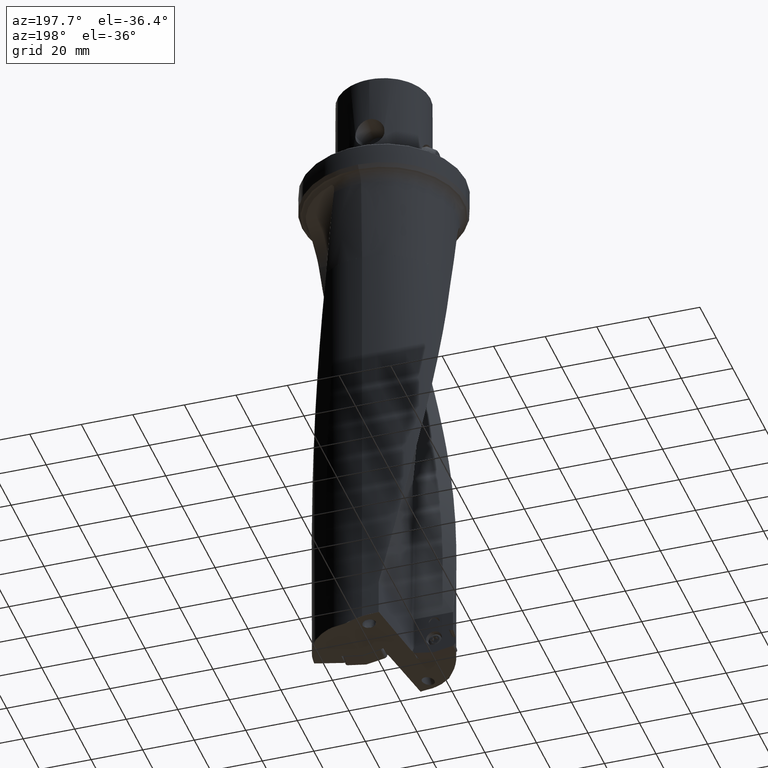
[diagram: clean part render]
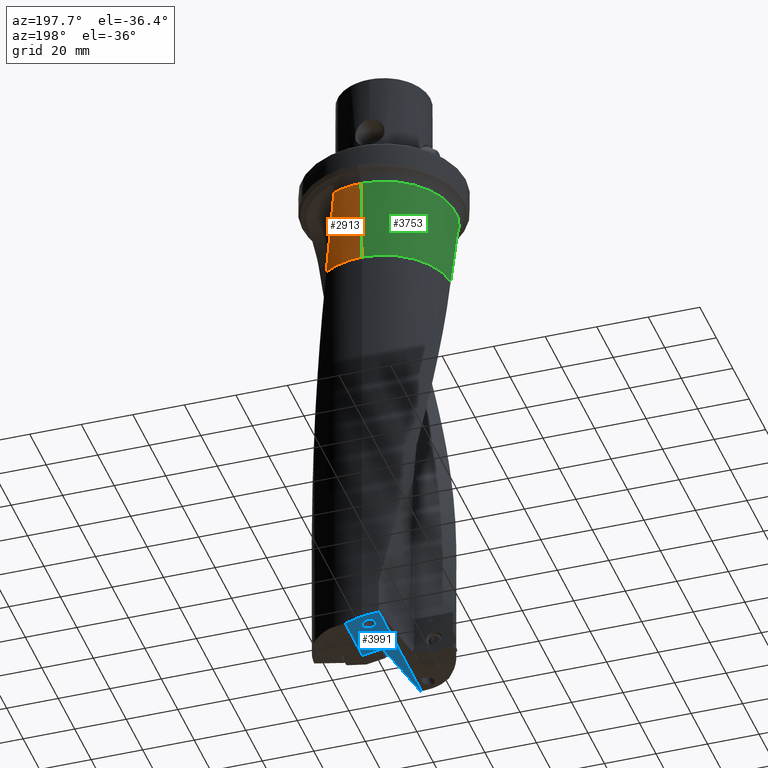
[diagram: same view with three faces highlighted in distinct colors, each labeled with its STEP entity id]
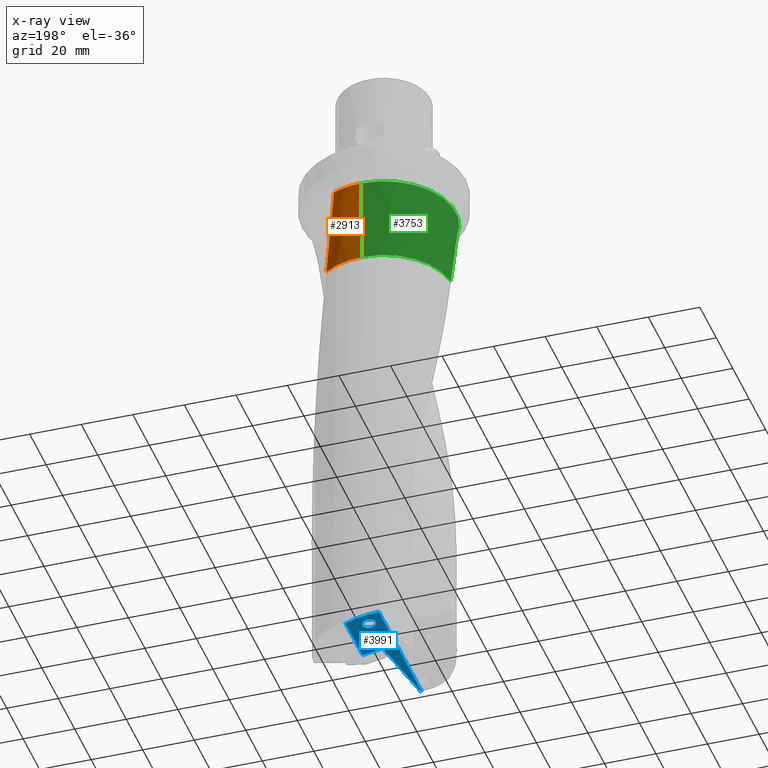
[diagram: x-ray of the same camera — body ghosted, the three highlighted faces saturated]
A machine part, auxiliary view with three faces highlighted in distinct colors.
The next image is the same camera in x-ray (body ghosted, the three faces saturated) — at least one of them is partly hidden behind the body in this view.
Their STEP definitions:

[orange] entity #2913 — the highlighted conical surface has half-angle 2 deg.
#2107=EDGE_CURVE('NONE',#3007,#2721,#5804,.T.);
#2721=VERTEX_POINT('NONE',#6487);
#2913=ADVANCED_FACE('NONE',(#6697),#6698,.T.);
#3007=VERTEX_POINT('NONE',#6804);
#4087=EDGE_CURVE('NONE',#2721,#4703,#8013,.T.);
#4429=EDGE_CURVE('NONE',#4703,#5197,#8394,.F.);
#4703=VERTEX_POINT('NONE',#8697);
#5197=VERTEX_POINT('NONE',#9230);
#5419=EDGE_CURVE('NONE',#5197,#3007,#9474,.T.);
#5804=CIRCLE('',#11980,27.8919292863653);
#6487=CARTESIAN_POINT('',(11.2729304261871,25.5123648241778,-14.9414705584278));
#6697=FACE_OUTER_BOUND('',#19399,.T.);
#6698=CONICAL_SURFACE('',#19400,26.7375,0.0349065850398865);
#6804=CARTESIAN_POINT('',(0.0,27.8919292863653,-14.9414705584278));
#8013=B_SPLINE_CURVE_WITH_KNOTS('',3,(#41947,#41948,#41949,#41950,#41951,#41952,#41953,#41954,#41955,#41956),.UNSPECIFIED.,.F.,.F.,(4,3,3,4),(0.0,0.360174094340688,0.743214505960517,1.0),.UNSPECIFIED.);
#8394=CIRCLE('',#49047,26.7375609172981);
#8697=CARTESIAN_POINT('',(15.4328762786714,21.8339985704279,-47.9982555568222));
#9230=CARTESIAN_POINT('',(0.0,26.7375609172981,-47.9982555568222));
#9474=LINE('',#75172,#75173);
#11980=AXIS2_PLACEMENT_3D('',#75724,#75725,#75726);
#19399=EDGE_LOOP('',(#76752,#76753,#76754,#76755));
#19400=AXIS2_PLACEMENT_3D('',#76756,#76757,#76758);
#41947=CARTESIAN_POINT('',(11.2729304261871,25.5123648241778,-14.9414705584278));
#41948=CARTESIAN_POINT('',(11.8320675730131,25.1139070300152,-18.9070313249317));
#41949=CARTESIAN_POINT('',(12.3703401733632,24.6980316066396,-22.8737816850695));
#41950=CARTESIAN_POINT('',(12.8871114083014,24.2667064184802,-26.8416501023492));
#41951=CARTESIAN_POINT('',(13.4366908190759,23.807997754502,-31.0614259709893));
#41952=CARTESIAN_POINT('',(13.9620260752628,23.3317486143363,-35.2824487118406));
#41953=CARTESIAN_POINT('',(14.4617129296698,22.840853550321,-39.5048088966081));
#41954=CARTESIAN_POINT('',(14.7966967378569,22.5117636482878,-42.335426275785));
#41955=CARTESIAN_POINT('',(15.1206433869256,22.1757870598416,-45.1665445609205));
#41956=CARTESIAN_POINT('',(15.4328762786714,21.8339985704279,-47.9982555568222));
#49047=AXIS2_PLACEMENT_3D('',#78813,#78814,#78815);
#75172=CARTESIAN_POINT('',(0.0,26.7375,-48.0));
#75173=VECTOR('',#79951,1000.0);
#75724=CARTESIAN_POINT('',(0.0,0.0,-14.9414705584278));
#75725=DIRECTION('',(0.0,0.0,-1.0));
#75726=DIRECTION('',(0.0,1.0,0.0));
#76752=ORIENTED_EDGE('',*,*,#4429,.T.);
#76753=ORIENTED_EDGE('',*,*,#5419,.T.);
#76754=ORIENTED_EDGE('',*,*,#2107,.T.);
#76755=ORIENTED_EDGE('',*,*,#4087,.T.);
#76756=CARTESIAN_POINT('',(0.0,0.0,-48.0));
#76757=DIRECTION('',(-0.0,-0.0,1.0));
#76758=DIRECTION('',(0.0,1.0,0.0));
#78813=CARTESIAN_POINT('',(0.0,0.0,-47.9982555568222));
#78814=DIRECTION('',(0.0,0.0,-1.0));
#78815=DIRECTION('',(0.0,1.0,0.0));
#79951=DIRECTION('',(0.0,0.0348994967025009,0.999390827019096));

[blue] entity #3991 — the highlighted planar face has unit normal (0.1736, 0, 0.9848).
#2013=EDGE_CURVE('NONE',#3029,#4135,#5698,.F.);
#2021=VERTEX_POINT('NONE',#5707);
#2137=EDGE_CURVE('NONE',#3465,#5019,#5836,.F.);
#2575=EDGE_CURVE('NONE',#3313,#3975,#6325,.T.);
#2625=VERTEX_POINT('NONE',#6379);
#2661=VERTEX_POINT('NONE',#6415);
#2741=VERTEX_POINT('NONE',#6508);
#2747=EDGE_CURVE('NONE',#2661,#5019,#6514,.F.);
#2887=EDGE_CURVE('NONE',#5437,#4617,#6668,.T.);
#3029=VERTEX_POINT('NONE',#6829);
#3187=VERTEX_POINT('NONE',#7000);
#3313=VERTEX_POINT('NONE',#7143);
#3465=VERTEX_POINT('NONE',#7314);
#3595=EDGE_CURVE('NONE',#3187,#3465,#7461,.F.);
#3649=EDGE_CURVE('NONE',#5101,#2661,#7519,.F.);
#3661=EDGE_CURVE('NONE',#2741,#3815,#7532,.T.);
#3763=EDGE_CURVE('NONE',#5101,#2021,#7649,.T.);
#3815=VERTEX_POINT('NONE',#7709);
#3897=EDGE_CURVE('NONE',#3975,#3313,#7801,.T.);
#3911=EDGE_CURVE('NONE',#2625,#4735,#7816,.F.);
#3975=VERTEX_POINT('NONE',#7888);
#3991=ADVANCED_FACE('NONE',(#7907,#7908),#7909,.F.);
#4043=EDGE_CURVE('NONE',#4135,#3187,#7964,.F.);
#4135=VERTEX_POINT('NONE',#8067);
#4273=EDGE_CURVE('NONE',#3029,#5437,#8218,.T.);
#4617=VERTEX_POINT('NONE',#8602);
#4667=EDGE_CURVE('NONE',#4617,#2625,#8657,.F.);
#4735=VERTEX_POINT('NONE',#8730);
#4791=EDGE_CURVE('NONE',#5155,#2021,#8792,.T.);
#4933=EDGE_CURVE('NONE',#4735,#2741,#8943,.F.);
#5019=VERTEX_POINT('NONE',#9040);
#5101=VERTEX_POINT('NONE',#9130);
#5155=VERTEX_POINT('NONE',#9185);
#5185=EDGE_CURVE('NONE',#3815,#5155,#9218,.F.);
#5437=VERTEX_POINT('NONE',#9492);
#5698=LINE('',#9895,#9896);
#5707=CARTESIAN_POINT('',(6.75999999999996,25.7608954110081,-214.123958985474));
#5836=LINE('',#12033,#12034);
#6325=B_SPLINE_CURVE_WITH_KNOTS('',3,(#17724,#17725,#17726,#17727,#17728,#17729,#17730,#17731,#17732,#17733,#17734,#17735,#17736,#17737,#17738,#17739,#17740,#17741,#17742,#17743,#17744,#17745,#17746,#17747),.UNSPECIFIED.,.F.,.F.,(4,2,2,2,2,2,2,2,2,2,2,4),(1.38845624178386E-017,0.000984492848026609,0.0014767392720399,0.0019689856960532,0.00295347854407981,0.00344572496809311,0.00393797139210642,0.00443021781611972,0.00492246424013303,0.00590695708815962,0.00689144993618622,0.00787594278421281),.UNSPECIFIED.);
#6379=CARTESIAN_POINT('',(-6.30168342917293,-25.8855895401347,-211.820831783439));
#6415=CARTESIAN_POINT('',(-1.31798266186617,5.05999999999994,-212.699592692492));
#6508=CARTESIAN_POINT('',(-6.30071188499982,25.1818363951064,-211.821003092889));
#6514=LINE('',#19072,#19073);
#6668=B_SPLINE_CURVE_WITH_KNOTS('',3,(#19341,#19342,#19343,#19344,#19345,#19346,#19347,#19348,#19349,#19350,#19351,#19352,#19353,#19354,#19355,#19356,#19357,#19358,#19359),.UNSPECIFIED.,.F.,.F.,(4,3,3,3,3,3,4),(0.0,0.139627484351825,0.540526374161191,0.726203799942563,0.863101899971282,0.948909042055041,1.0),.UNSPECIFIED.);
#6829=CARTESIAN_POINT('',(-1.6957222108167,0.165162263750365,-212.632987018332));
#7000=CARTESIAN_POINT('',(-1.64572221081758,0.559999999999942,-212.641803367367));
#7143=CARTESIAN_POINT('',(-3.49900474017604,21.0709982196661,-212.315019654565));
#7314=CARTESIAN_POINT('',(-1.46609895265826,0.559999999999943,-212.673475794143));
#7461=LINE('',#35698,#35699);
#7519=LINE('',#35844,#35845);
#7532=ELLIPSE('',#35860,1.65894897188694,0.0999999999999998);
#7649=LINE('',#36055,#36056);
#7709=CARTESIAN_POINT('',(-6.31755308944121,25.2832867291401,-211.818033534159));
#7801=B_SPLINE_CURVE_WITH_KNOTS('',3,(#40934,#40935,#40936,#40937,#40938,#40939,#40940,#40941,#40942,#40943,#40944,#40945,#40946,#40947,#40948,#40949,#40950,#40951),.UNSPECIFIED.,.F.,.F.,(4,2,2,2,2,2,2,2,4),(0.00787594278421281,0.00836837570573623,0.00886080862725966,0.00984567447030651,0.0108305403133534,0.0118154061564002,0.0128002719994471,0.0137851378424939,0.0157548695285876),.UNSPECIFIED.);
#7816=B_SPLINE_CURVE_WITH_KNOTS('',3,(#40981,#40982,#40983,#40984),.UNSPECIFIED.,.F.,.F.,(4,4),(0.0,0.0501572706854519),.UNSPECIFIED.);
#7888=CARTESIAN_POINT('',(1.40309125202211,21.5168638478736,-213.179391440013));
#7907=FACE_OUTER_BOUND('',#41110,.T.);
#7908=FACE_BOUND('',#41111,.T.);
#7909=PLANE('',#41112);
#7964=ELLIPSE('',#41218,0.050771330594289,0.0500000000000012);
#8067=CARTESIAN_POINT('',(-1.69572221081757,0.509999999999948,-212.632987018332));
#8218=B_SPLINE_CURVE_WITH_KNOTS('',3,(#44289,#44290,#44291,#44292,#44293,#44294,#44295,#44296,#44297,#44298,#44299,#44300,#44301),.UNSPECIFIED.,.F.,.F.,(4,3,3,3,4),(0.0,0.485388260154479,0.796524360999116,0.832282553584312,1.0),.UNSPECIFIED.);
#8602=CARTESIAN_POINT('',(-5.95736754217455,-25.9667628687911,-211.881543964203));
#8657=B_SPLINE_CURVE_WITH_KNOTS('',3,(#52599,#52600,#52601,#52602),.UNSPECIFIED.,.F.,.F.,(4,4),(1.33199781265281,1.34591159092532),.UNSPECIFIED.);
#8730=CARTESIAN_POINT('',(-6.30071188499986,-25.877370674548,-211.821003092889));
#8792=B_SPLINE_CURVE_WITH_KNOTS('',3,(#52969,#52970,#52971,#52972,#52973,#52974,#52975,#52976,#52977,#52978,#52979,#52980,#52981,#52982,#52983,#52984),.UNSPECIFIED.,.F.,.F.,(4,3,3,3,3,4),(0.0,0.0833007236744869,0.541650361837243,0.770825180918622,0.905247003464465,1.0),.UNSPECIFIED.);
#8943=LINE('',#60480,#60481);
#9040=CARTESIAN_POINT('',(-1.31798266186615,1.85999999999989,-212.699592692492));
#9130=CARTESIAN_POINT('',(6.75999999999996,5.06,-214.123958985474));
#9185=CARTESIAN_POINT('',(-6.20734451947592,25.9083105883502,-211.837466278549));
#9218=LINE('',#63192,#63193);
#9492=CARTESIAN_POINT('',(-1.93655569413967,-0.366031015316928,-212.590521577364));
#9895=CARTESIAN_POINT('',(-1.69572221081651,-29.2322576351926,-212.632987018332));
#9896=VECTOR('',#75605,1.0);
#12033=CARTESIAN_POINT('',(-3.24750842489322,-15.0752302742683,-212.359365240498));
#12034=VECTOR('',#75757,1.0);
#17724=CARTESIAN_POINT('',(-3.49900474017604,21.0709982196661,-212.315019654565));
#17725=CARTESIAN_POINT('',(-3.49900474017604,20.7425807035107,-212.315019654565));
#17726=CARTESIAN_POINT('',(-3.4349566191522,20.4153236609313,-212.326313066366));
#17727=CARTESIAN_POINT('',(-3.24045628298917,19.9641072342828,-212.360608723388));
#17728=CARTESIAN_POINT('',(-3.15938134470154,19.8208733683325,-212.374904422467));
#17729=CARTESIAN_POINT('',(-2.96969074865502,19.5580790743191,-212.408351992537));
#17730=CARTESIAN_POINT('',(-2.86179712350703,19.4388626755826,-212.427376549697));
#17731=CARTESIAN_POINT('',(-2.49858308189653,19.1181180987007,-212.491420985005));
#17732=CARTESIAN_POINT('',(-2.20407034106776,18.9588787178142,-212.543351527376));
#17733=CARTESIAN_POINT('',(-1.74021868566978,18.8268699107579,-212.625141089269));
#17734=CARTESIAN_POINT('',(-1.5827143060538,18.7999185012943,-212.652913360975));
#17735=CARTESIAN_POINT('',(-1.26220072810096,18.7785270511093,-212.709428552451));
#17736=CARTESIAN_POINT('',(-1.09988803465853,18.7844282640385,-212.738048659616));
#17737=CARTESIAN_POINT('',(-0.779643663826499,18.8279879812964,-212.794516382614));
#17738=CARTESIAN_POINT('',(-0.623473067387506,18.8651748598775,-212.82205347236));
#17739=CARTESIAN_POINT('',(-0.320058755570147,18.9676201400439,-212.875553601866));
#17740=CARTESIAN_POINT('',(-0.171586843618006,19.0335389406329,-212.901733205821));
#17741=CARTESIAN_POINT('',(0.25219530839155,19.2693498459585,-212.976457433163));
#17742=CARTESIAN_POINT('',(0.507510486157422,19.4780523638846,-213.021476387587));
#17743=CARTESIAN_POINT('',(0.933266374535363,19.9692312437276,-213.096548637904));
#17744=CARTESIAN_POINT('',(1.10459533349543,20.2525244032299,-213.126758555945));
#17745=CARTESIAN_POINT('',(1.33965237187545,20.8627198532156,-213.168205453817));
#17746=CARTESIAN_POINT('',(1.40309125202211,21.1891880720983,-213.179391440013));
#17747=CARTESIAN_POINT('',(1.40309125202211,21.5168638478736,-213.179391440013));
#19072=CARTESIAN_POINT('',(-1.31798266186614,-0.641735751251673,-212.699592692492));
#19073=VECTOR('',#76538,1.0);
#19341=CARTESIAN_POINT('',(-1.93655569413967,-0.366031015316928,-212.590521577364));
#19342=CARTESIAN_POINT('',(-2.13013178048621,-1.5564979786435,-212.556388890521));
#19343=CARTESIAN_POINT('',(-2.32258819082985,-2.74715267832311,-212.522453632767));
#19344=CARTESIAN_POINT('',(-2.51446643412064,-3.93790278923449,-212.488620321464));
#19345=CARTESIAN_POINT('',(-3.06538787391413,-7.356788402771,-212.391478007378));
#19346=CARTESIAN_POINT('',(-3.60697762900334,-10.7772259123462,-212.29598112108));
#19347=CARTESIAN_POINT('',(-4.14370578006962,-14.1984329319206,-212.201341466741));
#19348=CARTESIAN_POINT('',(-4.39229290257767,-15.782974392641,-212.157508849986));
#19349=CARTESIAN_POINT('',(-4.63840640771162,-17.3679209138878,-212.114112398715));
#19350=CARTESIAN_POINT('',(-4.88339176293864,-18.9530439011264,-212.07091487071));
#19351=CARTESIAN_POINT('',(-5.06401700332155,-20.1217391496286,-212.039065767433));
#19352=CARTESIAN_POINT('',(-5.24457318321078,-21.2904390671239,-212.007228841385));
#19353=CARTESIAN_POINT('',(-5.42288050015878,-22.4595080791843,-211.975788450549));
#19354=CARTESIAN_POINT('',(-5.53464276184628,-23.1922755230168,-211.956081748389));
#19355=CARTESIAN_POINT('',(-5.64714302178497,-23.9249160496142,-211.936244917225));
#19356=CARTESIAN_POINT('',(-5.75837909446494,-24.6577651558054,-211.916630996383));
#19357=CARTESIAN_POINT('',(-5.82461084829385,-25.09411534712,-211.904952551204));
#19358=CARTESIAN_POINT('',(-5.89117009068684,-25.5304094073869,-211.893216360954));
#19359=CARTESIAN_POINT('',(-5.95736754217455,-25.9667628687911,-211.881543964203));
#35698=CARTESIAN_POINT('',(5.74745770280639,0.559999999999993,-213.945420459371));
#35699=VECTOR('',#77707,1.0);
#35844=CARTESIAN_POINT('',(6.28356944729565,5.06,-214.039951424599));
#35845=VECTOR('',#77762,1.0);
#35860=AXIS2_PLACEMENT_3D('',#77774,#77775,#77776);
#36055=CARTESIAN_POINT('',(6.75999999999996,-31.75,-214.123958985474));
#36056=VECTOR('',#77924,1.0);
#40934=CARTESIAN_POINT('',(1.40309125202211,21.5168638478736,-213.179391440013));
#40935=CARTESIAN_POINT('',(1.40309125202211,21.6807638090575,-213.179391440013));
#40936=CARTESIAN_POINT('',(1.38712181755155,21.8450292251189,-213.176575597849));
#40937=CARTESIAN_POINT('',(1.32314643922247,22.1642143150065,-213.165295012549));
#40938=CARTESIAN_POINT('',(1.27557889236671,22.3186537224815,-213.156907570632));
#40939=CARTESIAN_POINT('',(1.0842136827365,22.7658764892911,-213.123164721005));
#40940=CARTESIAN_POINT('',(0.889441408324017,23.039617286778,-213.088821113932));
#40941=CARTESIAN_POINT('',(0.402203709848752,23.4704258052648,-213.002907961673));
#40942=CARTESIAN_POINT('',(0.108900075618246,23.628391308482,-212.951190617418));
#40943=CARTESIAN_POINT('',(-0.50616320341373,23.8041918806281,-212.842738366482));
#40944=CARTESIAN_POINT('',(-0.836741689440956,23.8249108653027,-212.784448460153));
#40945=CARTESIAN_POINT('',(-1.47271527713673,23.738782251693,-212.672309157625));
#40946=CARTESIAN_POINT('',(-1.78157918762783,23.6336058844736,-212.617848116838));
#40947=CARTESIAN_POINT('',(-2.34770403781904,23.3188851171604,-212.5180250313));
#40948=CARTESIAN_POINT('',(-2.60264704677737,23.110597523076,-212.473071700277));
#40949=CARTESIAN_POINT('',(-3.24239458921781,22.3728695276629,-212.360266947703));
#40950=CARTESIAN_POINT('',(-3.49900474017604,21.7280821072091,-212.315019654565));
#40951=CARTESIAN_POINT('',(-3.49900474017604,21.0709982196661,-212.315019654565));
#40981=CARTESIAN_POINT('',(-6.30071188499986,-25.877370674548,-211.821003092889));
#40982=CARTESIAN_POINT('',(-6.3006730796935,-25.8802175336619,-211.821009935312));
#40983=CARTESIAN_POINT('',(-6.30104312721091,-25.8829464385844,-211.82094468595));
#40984=CARTESIAN_POINT('',(-6.30168342917292,-25.8855895401347,-211.820831783439));
#41110=EDGE_LOOP('',(#78253,#78254,#78255,#78256,#78257,#78258,#78259,#78260,#78261,#78262,#78263,#78264,#78265,#78266,#78267));
#41111=EDGE_LOOP('',(#78268,#78269));
#41112=AXIS2_PLACEMENT_3D('',#78270,#78271,#78272);
#41218=AXIS2_PLACEMENT_3D('',#78324,#78325,#78326);
#44289=CARTESIAN_POINT('',(-1.6957222108167,0.165162263750364,-212.632987018332));
#44290=CARTESIAN_POINT('',(-1.7562387284992,0.0917850203805659,-212.622316323486));
#44291=CARTESIAN_POINT('',(-1.80733820115561,0.0104267280674017,-212.613306107756));
#44292=CARTESIAN_POINT('',(-1.84746159746831,-0.0761854715688379,-212.606231270429));
#44293=CARTESIAN_POINT('',(-1.8731808785185,-0.131704288756177,-212.601696267255));
#44294=CARTESIAN_POINT('',(-1.89539973566345,-0.190320312735818,-212.59777848326));
#44295=CARTESIAN_POINT('',(-1.91065942467403,-0.248407267999333,-212.59508778837));
#44296=CARTESIAN_POINT('',(-1.91241318740664,-0.255083074912648,-212.594778552683));
#44297=CARTESIAN_POINT('',(-1.91409900777314,-0.2617738536248,-212.594481297068));
#44298=CARTESIAN_POINT('',(-1.9158127580698,-0.268567388503087,-212.594179116652));
#44299=CARTESIAN_POINT('',(-1.92385079922257,-0.300431256320437,-212.592761793125));
#44300=CARTESIAN_POINT('',(-1.93125004534708,-0.333402007661719,-212.591457106396));
#44301=CARTESIAN_POINT('',(-1.93655569413967,-0.366031015316928,-212.590521577364));
#52599=CARTESIAN_POINT('',(-6.30168342917292,-25.8855895401347,-211.820831783439));
#52600=CARTESIAN_POINT('',(-6.19803973547983,-25.9108264363632,-211.839106963017));
#52601=CARTESIAN_POINT('',(-6.07779946933613,-25.9392135751393,-211.860308566106));
#52602=CARTESIAN_POINT('',(-5.95736754217453,-25.9667628687911,-211.881543964203));
#52969=CARTESIAN_POINT('',(-6.20734451947594,25.9083105883502,-211.837466278549));
#52970=CARTESIAN_POINT('',(-5.85339525003591,25.9928757007168,-211.899877084553));
#52971=CARTESIAN_POINT('',(-5.49771224943594,26.0701482778817,-211.962593594138));
#52972=CARTESIAN_POINT('',(-5.14064847077516,26.1400880249729,-212.02555357215));
#52973=CARTESIAN_POINT('',(-3.17595901153677,26.5249209094715,-212.371981332527));
#52974=CARTESIAN_POINT('',(-1.16937011339511,26.6877281547493,-212.72579709446));
#52975=CARTESIAN_POINT('',(0.830554332820959,26.6239527004663,-213.078437733706));
#52976=CARTESIAN_POINT('',(1.83051655592899,26.5920649733248,-213.254758053329));
#52977=CARTESIAN_POINT('',(2.82868696419723,26.5042284369162,-213.430762427652));
#52978=CARTESIAN_POINT('',(3.81941483346892,26.3608543656542,-213.605454481544));
#52979=CARTESIAN_POINT('',(4.40052337919954,26.2767587218042,-213.707919596877));
#52980=CARTESIAN_POINT('',(4.97909411383024,26.1769003785944,-213.80993722764));
#52981=CARTESIAN_POINT('',(5.55334335678017,26.0540950043232,-213.911192862824));
#52982=CARTESIAN_POINT('',(5.95812760607282,25.9675303604098,-213.98256724734));
#52983=CARTESIAN_POINT('',(6.35920193842509,25.8645979871301,-214.053287473403));
#52984=CARTESIAN_POINT('',(6.75999999999996,25.7608954110081,-214.123958985474));
#60480=CARTESIAN_POINT('',(-6.30071188499983,-31.75,-211.821003092889));
#60481=VECTOR('',#79395,1.0);
#63192=CARTESIAN_POINT('',(-15.6554682365644,-27.674661677871,-210.171507150155));
#63193=VECTOR('',#79687,1.0);
#75605=DIRECTION('',(6.56184230006254E-015,-1.0,-1.15702984065514E-015));
#75757=DIRECTION('',(-0.113180668569507,-0.993373979009851,0.0199568055634269));
#76538=DIRECTION('',(-6.56184230006254E-015,1.0,1.15702984065514E-015));
#77707=DIRECTION('',(-0.984807753012208,-6.87687976706728E-015,0.173648177666933));
#77762=DIRECTION('',(0.984807753012208,6.87687976706729E-015,-0.173648177666933));
#77774=CARTESIAN_POINT('',(-6.58865040915669,23.6473366531892,-211.770231762295));
#77775=DIRECTION('',(0.173648177666933,0.0,0.984807753012208));
#77776=DIRECTION('',(-0.163396601946322,-0.986139677494163,0.0288112294792184));
#77924=DIRECTION('',(0.0,1.0,0.0));
#78253=ORIENTED_EDGE('',*,*,#2013,.F.);
#78254=ORIENTED_EDGE('',*,*,#4273,.T.);
#78255=ORIENTED_EDGE('',*,*,#2887,.T.);
#78256=ORIENTED_EDGE('',*,*,#4667,.T.);
#78257=ORIENTED_EDGE('',*,*,#3911,.T.);
#78258=ORIENTED_EDGE('',*,*,#4933,.T.);
#78259=ORIENTED_EDGE('',*,*,#3661,.T.);
#78260=ORIENTED_EDGE('',*,*,#5185,.T.);
#78261=ORIENTED_EDGE('',*,*,#4791,.T.);
#78262=ORIENTED_EDGE('',*,*,#3763,.F.);
#78263=ORIENTED_EDGE('',*,*,#3649,.T.);
#78264=ORIENTED_EDGE('',*,*,#2747,.T.);
#78265=ORIENTED_EDGE('',*,*,#2137,.F.);
#78266=ORIENTED_EDGE('',*,*,#3595,.F.);
#78267=ORIENTED_EDGE('',*,*,#4043,.F.);
#78268=ORIENTED_EDGE('',*,*,#2575,.T.);
#78269=ORIENTED_EDGE('',*,*,#3897,.T.);
#78270=CARTESIAN_POINT('',(6.75999999999996,-31.75,-214.123958985474));
#78271=DIRECTION('',(0.173648177666933,0.0,0.984807753012208));
#78272=DIRECTION('',(-0.984807753012208,0.0,0.173648177666933));
#78324=CARTESIAN_POINT('',(-1.64572221081757,0.509999999999941,-212.641803367367));
#78325=DIRECTION('',(0.173648177666933,0.0,0.984807753012208));
#78326=DIRECTION('',(-0.984807753012208,-6.82111082770066E-015,0.173648177666933));
#79395=DIRECTION('',(-0.0,-1.0,0.0));
#79687=DIRECTION('',(-0.17356683601285,-0.984346441568213,0.0306045161452661));

[green] entity #3753 — the highlighted conical surface has half-angle 2 deg.
#1909=EDGE_CURVE('NONE',#5081,#4261,#5582,.T.);
#2987=EDGE_CURVE('NONE',#5515,#5081,#6781,.T.);
#3007=VERTEX_POINT('NONE',#6804);
#3753=ADVANCED_FACE('NONE',(#7634),#7635,.T.);
#4141=EDGE_CURVE('NONE',#4261,#3007,#8075,.T.);
#4261=VERTEX_POINT('NONE',#8204);
#4561=EDGE_CURVE('NONE',#5197,#5515,#8538,.F.);
#5081=VERTEX_POINT('NONE',#9108);
#5197=VERTEX_POINT('NONE',#9230);
#5419=EDGE_CURVE('NONE',#5197,#3007,#9474,.T.);
#5515=VERTEX_POINT('NONE',#9578);
#5582=B_SPLINE_CURVE_WITH_KNOTS('',3,(#9663,#9664,#9665,#9666,#9667,#9668,#9669,#9670,#9671,#9672,#9673,#9674,#9675),.UNSPECIFIED.,.F.,.F.,(4,3,3,3,4),(0.0,0.0433800029103565,0.42452455551438,0.762221183796856,1.0),.UNSPECIFIED.);
#6781=B_SPLINE_CURVE_WITH_KNOTS('',3,(#22275,#22276,#22277,#22278,#22279,#22280,#22281,#22282,#22283,#22284),.UNSPECIFIED.,.F.,.F.,(4,3,3,4),(0.0,0.5,0.822587756137668,1.0),.UNSPECIFIED.);
#6804=CARTESIAN_POINT('',(0.0,27.8919292863653,-14.9414705584278));
#7634=FACE_OUTER_BOUND('',#36038,.T.);
#7635=CONICAL_SURFACE('',#36039,26.7375,0.0349065850398865);
#8075=CIRCLE('',#44068,27.8919292863653);
#8204=CARTESIAN_POINT('',(-26.1994381582511,-9.56813249843327,-14.9414705584278));
#8538=CIRCLE('',#51691,26.7375609172981);
#9108=CARTESIAN_POINT('',(-27.430929749927,-2.58830471117496,-24.6536731714416));
#9230=CARTESIAN_POINT('',(0.0,26.7375609172981,-47.9982555568222));
#9474=LINE('',#75172,#75173);
#9578=CARTESIAN_POINT('',(-26.6338647347557,2.35253333599429,-47.9982555568222));
#9663=CARTESIAN_POINT('',(-27.430929749927,-2.58830471117496,-24.6536731714416));
#9664=CARTESIAN_POINT('',(-27.4334707034338,-2.62649021701352,-24.4785092246768));
#9665=CARTESIAN_POINT('',(-27.4356159182422,-2.66780365812438,-24.3040037842542));
#9666=CARTESIAN_POINT('',(-27.4373181150069,-2.71224642169288,-24.1302989085003));
#9667=CARTESIAN_POINT('',(-27.4522739236926,-3.10272858168272,-22.6040964485521));
#9668=CARTESIAN_POINT('',(-27.4348959552287,-3.7389838170867,-21.1402617862367));
#9669=CARTESIAN_POINT('',(-27.3399949347369,-4.58480638083753,-19.8145871818798));
#9670=CARTESIAN_POINT('',(-27.2559119944936,-5.33421084156623,-18.640030596898));
#9671=CARTESIAN_POINT('',(-27.1091727521858,-6.24793714053614,-17.5750899640726));
#9672=CARTESIAN_POINT('',(-26.8653139498213,-7.2714985978378,-16.6578463773523));
#9673=CARTESIAN_POINT('',(-26.6936081864506,-7.99220828589773,-16.011997186232));
#9674=CARTESIAN_POINT('',(-26.4738544231153,-8.76610441399271,-15.4387551811677));
#9675=CARTESIAN_POINT('',(-26.1994381582511,-9.56813249843327,-14.9414705584278));
#22275=CARTESIAN_POINT('',(-26.6338647347557,2.35253333599429,-47.9982555568222));
#22276=CARTESIAN_POINT('',(-26.8405699432972,1.55775085949247,-44.1044769515991));
#22277=CARTESIAN_POINT('',(-27.0117239429066,0.746525605891501,-40.2121639187572));
#22278=CARTESIAN_POINT('',(-27.1452112251592,-0.078333203386078,-36.3214415286995));
#22279=CARTESIAN_POINT('',(-27.2313339508688,-0.610511908216563,-33.8112427175729));
#22280=CARTESIAN_POINT('',(-27.3017967888319,-1.14779936925904,-31.3015915358244));
#22281=CARTESIAN_POINT('',(-27.3560860250902,-1.68995575904389,-28.7926379632294));
#22282=CARTESIAN_POINT('',(-27.3859432501054,-1.98812324930345,-27.412799222944));
#22283=CARTESIAN_POINT('',(-27.4109190758127,-2.28758385751495,-26.033135106099));
#22284=CARTESIAN_POINT('',(-27.430929749927,-2.58830471117496,-24.6536731714416));
#36038=EDGE_LOOP('',(#77889,#77890,#77891,#77892,#77893));
#36039=AXIS2_PLACEMENT_3D('',#77894,#77895,#77896);
#44068=AXIS2_PLACEMENT_3D('',#78460,#78461,#78462);
#51691=AXIS2_PLACEMENT_3D('',#78954,#78955,#78956);
#75172=CARTESIAN_POINT('',(0.0,26.7375,-48.0));
#75173=VECTOR('',#79951,1000.0);
#77889=ORIENTED_EDGE('',*,*,#5419,.F.);
#77890=ORIENTED_EDGE('',*,*,#4561,.T.);
#77891=ORIENTED_EDGE('',*,*,#2987,.T.);
#77892=ORIENTED_EDGE('',*,*,#1909,.T.);
#77893=ORIENTED_EDGE('',*,*,#4141,.T.);
#77894=CARTESIAN_POINT('',(0.0,0.0,-48.0));
#77895=DIRECTION('',(-0.0,-0.0,1.0));
#77896=DIRECTION('',(0.0,1.0,0.0));
#78460=CARTESIAN_POINT('',(0.0,0.0,-14.9414705584278));
#78461=DIRECTION('',(0.0,0.0,-1.0));
#78462=DIRECTION('',(0.0,1.0,0.0));
#78954=CARTESIAN_POINT('',(0.0,0.0,-47.9982555568222));
#78955=DIRECTION('',(0.0,0.0,-1.0));
#78956=DIRECTION('',(0.0,1.0,0.0));
#79951=DIRECTION('',(0.0,0.0348994967025009,0.999390827019096));